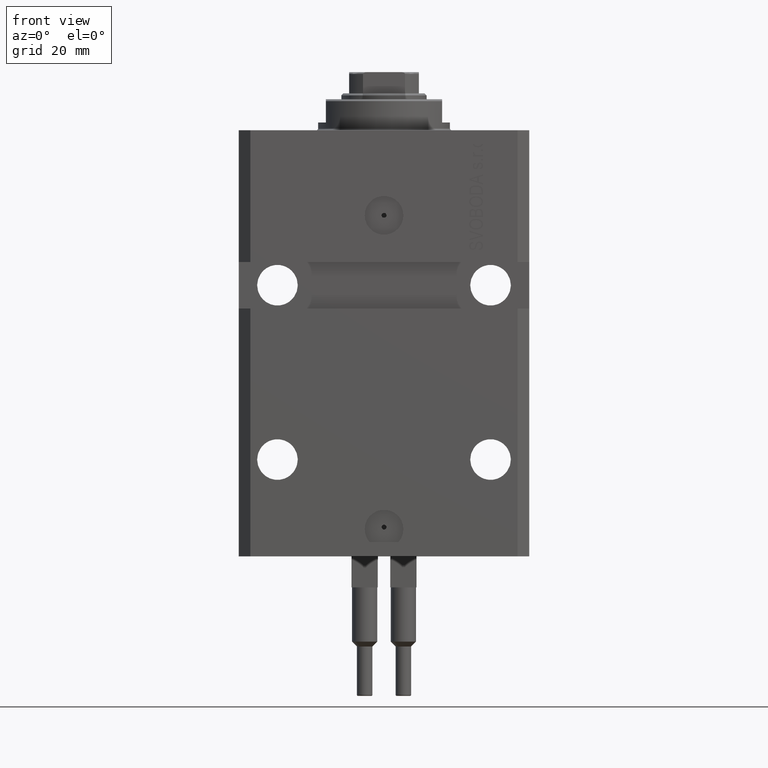
[diagram: clean part render]
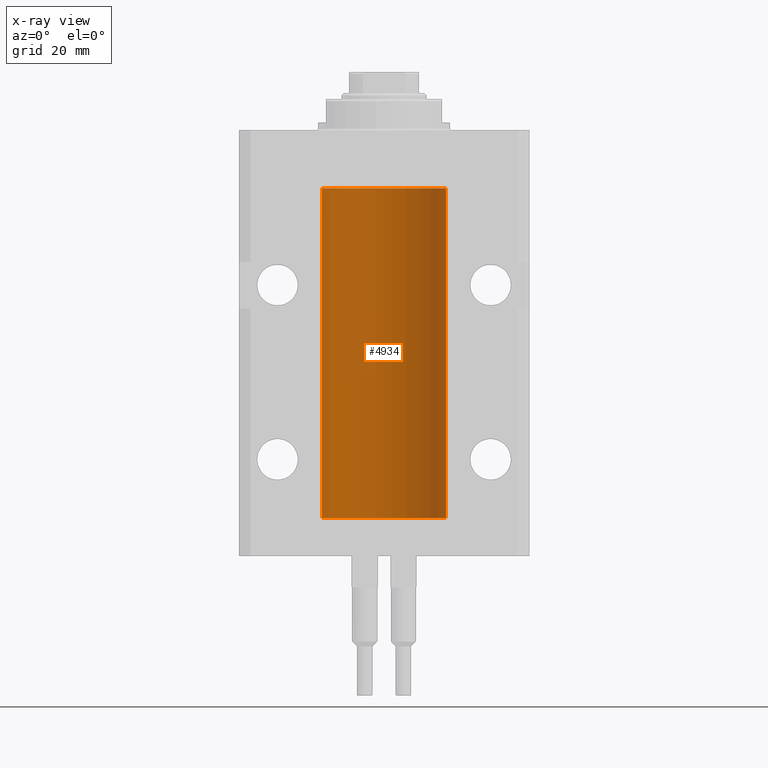
[diagram: x-ray — body ghosted, one internal face saturated and labeled with its STEP entity id]
A machine part, front view, then the same camera in x-ray: the body is ghosted and one INTERNAL B-rep face — a face not visible from any outside direction — is saturated and labeled: STEP entity #4934.
In plain terms, the highlighted cylindrical surface (partial cylindrical patch) has radius 16 mm, axis along (0, 0, 1).
Its self-contained STEP definition (entity closure, byte-faithful):
#1093 = CARTESIAN_POINT ( 'NONE',  ( -15.99711699979842017, 0.3253759916140657737, -22.55856151623175521 ) ) ;
#2497 = CARTESIAN_POINT ( 'NONE',  ( -16.00000000000013145, 3.685127046438747128E-13, -98.62500000000343903 ) ) ;
#3245 = CARTESIAN_POINT ( 'NONE',  ( -16.00000000000000000, 1.959434878635765131E-15, -100.0999999999999943 ) ) ;
#4213 = VERTEX_POINT ( 'NONE', #13554 ) ;
#4530 = CARTESIAN_POINT ( 'NONE',  ( -15.99707730059171240, 0.3150375992092407373, -21.45402333202571654 ) ) ;
#4770 = CARTESIAN_POINT ( 'NONE',  ( -15.99070426498503217, 0.5462220647145618058, -22.31460064614143590 ) ) ;
#4934 = ADVANCED_FACE ( 'NONE', ( #47896 ), #17692, .F. ) ;
#5304 = VERTEX_POINT ( 'NONE', #32270 ) ;
#5384 = CARTESIAN_POINT ( 'NONE',  ( 16.00000000000000000, 0.000000000000000000, -100.0999999999999943 ) ) ;
#5978 = VECTOR ( 'NONE', #25089, 1000.000000000000000 ) ;
#6118 = DIRECTION ( 'NONE',  ( 1.000000000000000000, 0.000000000000000000, 0.000000000000000000 ) ) ;
#6236 = CARTESIAN_POINT ( 'NONE',  ( -15.98778717651346604, 0.6250289588122097673, -98.08131585687051768 ) ) ;
#6504 = DIRECTION ( 'NONE',  ( 1.000000000000000000, 0.000000000000000000, 0.000000000000000000 ) ) ;
#6717 = CARTESIAN_POINT ( 'NONE',  ( -15.99228023727724057, 0.5003781296993360383, -98.38347829554236057 ) ) ;
#6784 = CIRCLE ( 'NONE', #23882, 16.00000000000000000 ) ;
#7027 = EDGE_CURVE ( 'NONE', #16007, #40360, #24764, .T. ) ;
#7076 = CARTESIAN_POINT ( 'NONE',  ( -16.00000000000000000, 1.959434878635765131E-15, -100.0999999999999943 ) ) ;
#7244 = DIRECTION ( 'NONE',  ( -0.000000000000000000, -0.000000000000000000, 1.000000000000000000 ) ) ;
#7531 = EDGE_CURVE ( 'NONE', #5304, #35803, #15858, .T. ) ;
#8182 = CARTESIAN_POINT ( 'NONE',  ( -16.00000000000000711, 0.08259886010189904093, -21.37500000000000000 ) ) ;
#9096 = VECTOR ( 'NONE', #13805, 1000.000000000000000 ) ;
#10131 = CARTESIAN_POINT ( 'NONE',  ( -16.00000000000013145, 3.685127046438747128E-13, -98.62500000000343903 ) ) ;
#10480 = LINE ( 'NONE', #7076, #5978 ) ;
#10619 = CARTESIAN_POINT ( 'NONE',  ( -16.00000000000000711, 0.08259886010188650929, -97.37500000000000000 ) ) ;
#10731 = ORIENTED_EDGE ( 'NONE', *, *, #29700, .F. ) ;
#11782 = CARTESIAN_POINT ( 'NONE',  ( -16.00000000000000000, -1.303459030566954747E-14, -97.37500000000000000 ) ) ;
#12919 = DIRECTION ( 'NONE',  ( -0.000000000000000000, -0.000000000000000000, 1.000000000000000000 ) ) ;
#13312 = VERTEX_POINT ( 'NONE', #2497 ) ;
#13554 = CARTESIAN_POINT ( 'NONE',  ( -16.00000000000000000, 1.959434878635765131E-15, -100.0999999999999943 ) ) ;
#13772 = CARTESIAN_POINT ( 'NONE',  ( -15.99934216141748244, 0.1636497843296308152, -97.39126528029306940 ) ) ;
#13805 = DIRECTION ( 'NONE',  ( -0.000000000000000000, -0.000000000000000000, 1.000000000000000000 ) ) ;
#14141 = CARTESIAN_POINT ( 'NONE',  ( -16.00000000000013145, 3.685127038166941002E-13, -22.62500000000341771 ) ) ;
#14151 = CARTESIAN_POINT ( 'NONE',  ( -16.00000000000000000, 1.643679961284177128E-16, -21.37499999999999645 ) ) ;
#14192 = B_SPLINE_CURVE_WITH_KNOTS ( 'NONE', 3,
 ( #41541, #8182, #37897, #4530, #19852, #30591, #45423, #38139, #23264, #4770, #34484, #1093, #15938, #30817 ),
 .UNSPECIFIED., .F., .F.,
 ( 4, 2, 2, 2, 2, 2, 4 ),
 ( 1.597328219370744179E-19, 0.0002442776652680942405, 0.0004885553305361882643, 0.0009771106610723839011, 0.001221388326340481665, 0.001465665991608579430, 0.001954221322144767369 ),
 .UNSPECIFIED. ) ;
#14198 = DIRECTION ( 'NONE',  ( 0.000000000000000000, 0.000000000000000000, 1.000000000000000000 ) ) ;
#15858 = LINE ( 'NONE', #5384, #28563 ) ;
#15938 = CARTESIAN_POINT ( 'NONE',  ( -16.00000000000000000, 0.1631714642025800244, -22.62499999999985789 ) ) ;
#16007 = VERTEX_POINT ( 'NONE', #14151 ) ;
#16467 = VECTOR ( 'NONE', #29552, 1000.000000000000000 ) ;
#17665 = CARTESIAN_POINT ( 'NONE',  ( -15.99548640841682712, 0.3843705577988784650, -97.50046628527007897 ) ) ;
#17692 = CYLINDRICAL_SURFACE ( 'NONE', #34800, 16.00000000000000000 ) ;
#19483 = EDGE_CURVE ( 'NONE', #16007, #44314, #14192, .T. ) ;
#19852 = CARTESIAN_POINT ( 'NONE',  ( -15.99548640841683067, 0.3843705577988847377, -21.50046628527008608 ) ) ;
#20489 = CARTESIAN_POINT ( 'NONE',  ( 0.000000000000000000, 0.000000000000000000, -15.00000000000000000 ) ) ;
#21083 = CARTESIAN_POINT ( 'NONE',  ( -15.99070426498503572, 0.5462220647145610286, -98.31460064614144301 ) ) ;
#21115 = CARTESIAN_POINT ( 'NONE',  ( -16.00000000000000000, 1.959434878635765131E-15, -100.0999999999999943 ) ) ;
#21982 = CARTESIAN_POINT ( 'NONE',  ( 0.000000000000000000, 0.000000000000000000, -100.0999999999999943 ) ) ;
#22015 = ORIENTED_EDGE ( 'NONE', *, *, #33065, .T. ) ;
#22552 = ORIENTED_EDGE ( 'NONE', *, *, #26575, .T. ) ;
#23264 = CARTESIAN_POINT ( 'NONE',  ( -15.98844267028591482, 0.6088369347963316081, -22.16324735024328518 ) ) ;
#23768 = ORIENTED_EDGE ( 'NONE', *, *, #7027, .F. ) ;
#23882 = AXIS2_PLACEMENT_3D ( 'NONE', #21982, #14198, #44393 ) ;
#24764 = LINE ( 'NONE', #21115, #9096 ) ;
#25089 = DIRECTION ( 'NONE',  ( -0.000000000000000000, -0.000000000000000000, 1.000000000000000000 ) ) ;
#26575 = EDGE_CURVE ( 'NONE', #27884, #13312, #43362, .T. ) ;
#27573 = DIRECTION ( 'NONE',  ( 0.000000000000000000, 0.000000000000000000, 1.000000000000000000 ) ) ;
#27875 = CARTESIAN_POINT ( 'NONE',  ( -16.00000000000000000, 1.959434878635765131E-15, -15.00000000000000000 ) ) ;
#27884 = VERTEX_POINT ( 'NONE', #11782 ) ;
#28563 = VECTOR ( 'NONE', #12919, 1000.000000000000000 ) ;
#29133 = CARTESIAN_POINT ( 'NONE',  ( -15.98844267028590949, 0.6088369347963275002, -98.16324735024325321 ) ) ;
#29552 = DIRECTION ( 'NONE',  ( -0.000000000000000000, -0.000000000000000000, 1.000000000000000000 ) ) ;
#29700 = EDGE_CURVE ( 'NONE', #27884, #44314, #10480, .T. ) ;
#30184 = EDGE_CURVE ( 'NONE', #5304, #4213, #6784, .T. ) ;
#30270 = CIRCLE ( 'NONE', #31791, 16.00000000000000000 ) ;
#30591 = CARTESIAN_POINT ( 'NONE',  ( -15.99070653155267685, 0.5573233280232986475, -21.67348148680506625 ) ) ;
#30817 = CARTESIAN_POINT ( 'NONE',  ( -16.00000000000013145, 3.685127038166941002E-13, -22.62500000000341771 ) ) ;
#31554 = ORIENTED_EDGE ( 'NONE', *, *, #7531, .T. ) ;
#31791 = AXIS2_PLACEMENT_3D ( 'NONE', #20489, #27573, #6118 ) ;
#32270 = CARTESIAN_POINT ( 'NONE',  ( 16.00000000000000000, 0.000000000000000000, -100.0999999999999943 ) ) ;
#32967 = LINE ( 'NONE', #3245, #16467 ) ;
#33037 = CARTESIAN_POINT ( 'NONE',  ( -15.99070653155267685, 0.5573233280232928744, -97.67348148680505915 ) ) ;
#33065 = EDGE_CURVE ( 'NONE', #35803, #40360, #30270, .T. ) ;
#33316 = ORIENTED_EDGE ( 'NONE', *, *, #43120, .F. ) ;
#34484 = CARTESIAN_POINT ( 'NONE',  ( -15.99228023727724413, 0.5003781296993413674, -22.38347829554236057 ) ) ;
#34800 = AXIS2_PLACEMENT_3D ( 'NONE', #39625, #7244, #6504 ) ;
#35803 = VERTEX_POINT ( 'NONE', #46053 ) ;
#37786 = EDGE_LOOP ( 'NONE', ( #33316, #38935, #31554, #22015, #23768, #39097, #10731, #22552 ) ) ;
#37897 = CARTESIAN_POINT ( 'NONE',  ( -15.99934216141748244, 0.1636497843296417787, -21.39126528029306229 ) ) ;
#38139 = CARTESIAN_POINT ( 'NONE',  ( -15.98778717651346071, 0.6250289588122140971, -22.08131585687052478 ) ) ;
#38935 = ORIENTED_EDGE ( 'NONE', *, *, #30184, .F. ) ;
#39097 = ORIENTED_EDGE ( 'NONE', *, *, #19483, .T. ) ;
#39625 = CARTESIAN_POINT ( 'NONE',  ( 0.000000000000000000, 0.000000000000000000, -100.0999999999999943 ) ) ;
#40360 = VERTEX_POINT ( 'NONE', #27875 ) ;
#41541 = CARTESIAN_POINT ( 'NONE',  ( -16.00000000000000000, 1.643679961284177128E-16, -21.37499999999999645 ) ) ;
#43120 = EDGE_CURVE ( 'NONE', #4213, #13312, #32967, .T. ) ;
#43362 = B_SPLINE_CURVE_WITH_KNOTS ( 'NONE', 3,
 ( #47138, #10619, #13772, #44216, #17665, #33037, #47383, #6236, #29133, #21083, #6717, #43482, #43725, #10131 ),
 .UNSPECIFIED., .F., .F.,
 ( 4, 2, 2, 2, 2, 2, 4 ),
 ( 1.003919637555167698E-18, 0.0002442776652680894158, 0.0004885553305361776391, 0.0009771106610723541940, 0.001221388326340463017, 0.001465665991608572274, 0.001954221322144760863 ),
 .UNSPECIFIED. ) ;
#43482 = CARTESIAN_POINT ( 'NONE',  ( -15.99711699979841661, 0.3253759916140614439, -98.55856151623174810 ) ) ;
#43725 = CARTESIAN_POINT ( 'NONE',  ( -15.99999999999998934, 0.1631714642025804407, -98.62499999999987210 ) ) ;
#44216 = CARTESIAN_POINT ( 'NONE',  ( -15.99707730059171240, 0.3150375992092294686, -97.45402333202572720 ) ) ;
#44314 = VERTEX_POINT ( 'NONE', #14141 ) ;
#44393 = DIRECTION ( 'NONE',  ( 1.000000000000000000, 0.000000000000000000, 0.000000000000000000 ) ) ;
#45423 = CARTESIAN_POINT ( 'NONE',  ( -15.98779057735153941, 0.6249419637998100407, -21.83670145863507273 ) ) ;
#46053 = CARTESIAN_POINT ( 'NONE',  ( 16.00000000000000000, 0.000000000000000000, -15.00000000000000000 ) ) ;
#47138 = CARTESIAN_POINT ( 'NONE',  ( -16.00000000000000000, -1.303459030566954747E-14, -97.37500000000000000 ) ) ;
#47383 = CARTESIAN_POINT ( 'NONE',  ( -15.98779057735153941, 0.6249419637998017141, -97.83670145863504786 ) ) ;
#47896 = FACE_OUTER_BOUND ( 'NONE', #37786, .T. ) ;